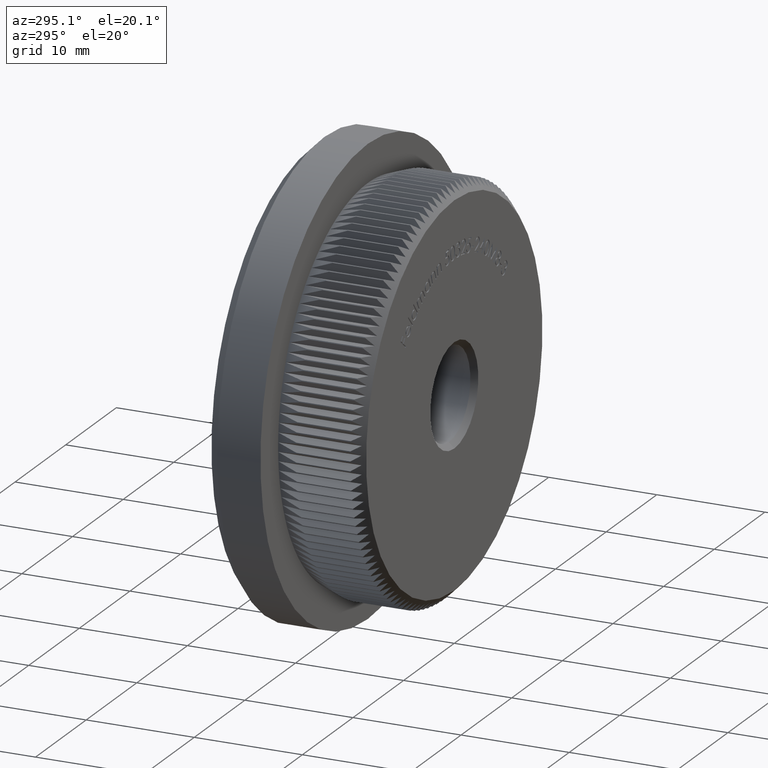
[diagram: clean part render]
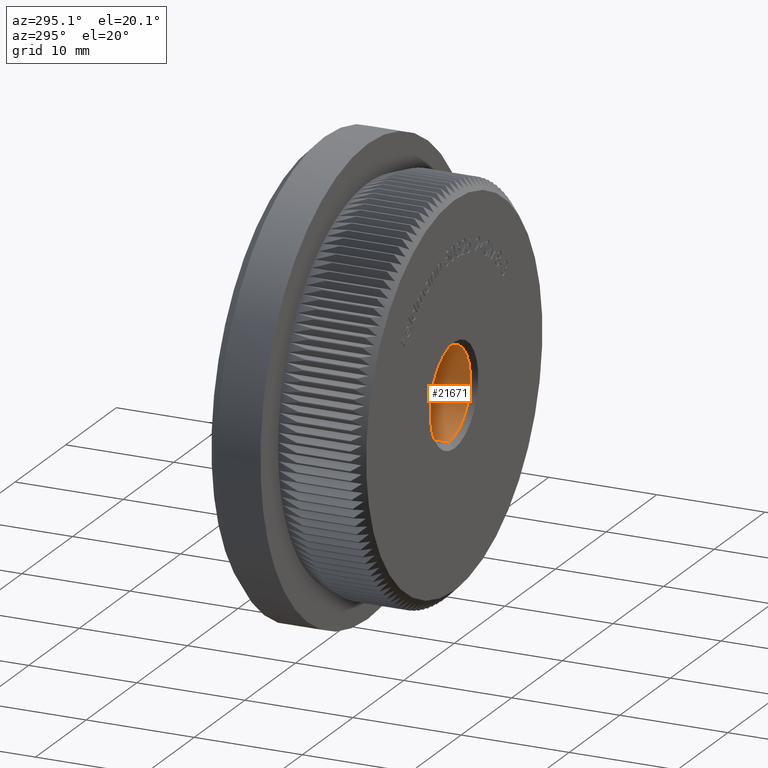
[diagram: same view with one face highlighted and labeled with its STEP entity id]
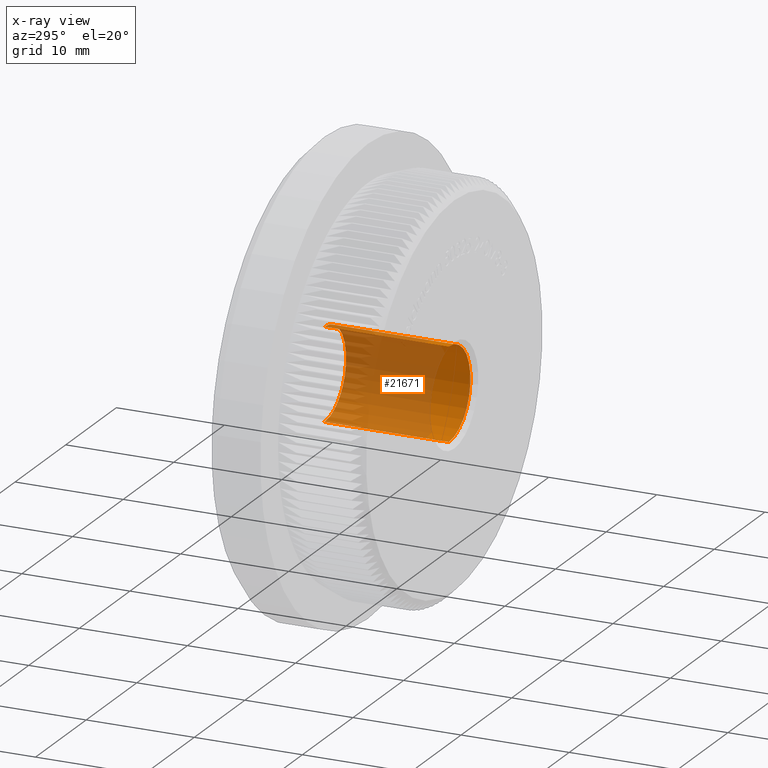
[diagram: x-ray of the same camera — body ghosted, the highlighted face saturated]
A machine part, auxiliary view. The second image highlights one B-rep face of the part: STEP entity #21671.
The next image is the same camera in x-ray: the body ghosted, the highlighted face saturated — about 75% of this face is hidden behind the body in this view.
In plain terms, the highlighted cylindrical surface (partial cylindrical patch) has radius 4.25 mm, axis along (-0, -1, -0).
Its self-contained STEP definition (entity closure, byte-faithful):
#192 = CARTESIAN_POINT ( 'NONE',  ( 0.0000000000000000000, 0.5000000000000078800, 0.0000000000000000000 ) ) ;
#1220 = EDGE_CURVE ( 'NONE', #15974, #27995, #18675, .T. ) ;
#2057 = DIRECTION ( 'NONE',  ( 0.0000000000000000000, 0.0000000000000000000, 1.000000000000000000 ) ) ;
#2417 = EDGE_LOOP ( 'NONE', ( #22675, #17330, #25316, #6185 ) ) ;
#3342 = CYLINDRICAL_SURFACE ( 'NONE', #26822, 4.249999999999997300 ) ;
#4757 = CARTESIAN_POINT ( 'NONE',  ( 0.0000000000000000000, 11.99999999999998000, -4.249999999999997300 ) ) ;
#5256 = LINE ( 'NONE', #12722, #30077 ) ;
#6037 = LINE ( 'NONE', #23704, #19038 ) ;
#6185 = ORIENTED_EDGE ( 'NONE', *, *, #17702, .T. ) ;
#8880 = FACE_OUTER_BOUND ( 'NONE', #2417, .T. ) ;
#10736 = CARTESIAN_POINT ( 'NONE',  ( 0.0000000000000000000, 0.5000000000000078800, -4.249999999999997300 ) ) ;
#12722 = CARTESIAN_POINT ( 'NONE',  ( 5.204748896376248700E-016, 0.0000000000000000000, 4.249999999999997300 ) ) ;
#14154 = DIRECTION ( 'NONE',  ( 0.0000000000000000000, 0.0000000000000000000, -1.000000000000000000 ) ) ;
#15974 = VERTEX_POINT ( 'NONE', #18412 ) ;
#17330 = ORIENTED_EDGE ( 'NONE', *, *, #1220, .T. ) ;
#17462 = AXIS2_PLACEMENT_3D ( 'NONE', #32249, #27039, #2057 ) ;
#17543 = CARTESIAN_POINT ( 'NONE',  ( 5.204748896376248700E-016, 0.5000000000000078800, 4.249999999999997300 ) ) ;
#17702 = EDGE_CURVE ( 'NONE', #21242, #23555, #27842, .T. ) ;
#18412 = CARTESIAN_POINT ( 'NONE',  ( 5.204748896376248700E-016, 11.99999999999998000, 4.249999999999997300 ) ) ;
#18675 = CIRCLE ( 'NONE', #17462, 4.249999999999997300 ) ;
#19038 = VECTOR ( 'NONE', #28649, 1000.000000000000000 ) ;
#21242 = VERTEX_POINT ( 'NONE', #10736 ) ;
#21671 = ADVANCED_FACE ( 'NONE', ( #8880 ), #3342, .F. ) ;
#22673 = DIRECTION ( 'NONE',  ( 0.0000000000000000000, -1.000000000000000000, 0.0000000000000000000 ) ) ;
#22675 = ORIENTED_EDGE ( 'NONE', *, *, #24083, .F. ) ;
#23396 = EDGE_CURVE ( 'NONE', #27995, #21242, #6037, .T. ) ;
#23555 = VERTEX_POINT ( 'NONE', #17543 ) ;
#23704 = CARTESIAN_POINT ( 'NONE',  ( 0.0000000000000000000, 0.0000000000000000000, -4.249999999999997300 ) ) ;
#24083 = EDGE_CURVE ( 'NONE', #15974, #23555, #5256, .T. ) ;
#25193 = DIRECTION ( 'NONE',  ( 0.0000000000000000000, 0.0000000000000000000, -1.000000000000000000 ) ) ;
#25316 = ORIENTED_EDGE ( 'NONE', *, *, #23396, .T. ) ;
#25365 = DIRECTION ( 'NONE',  ( -0.0000000000000000000, -1.000000000000000000, -0.0000000000000000000 ) ) ;
#26540 = AXIS2_PLACEMENT_3D ( 'NONE', #192, #22673, #25193 ) ;
#26705 = DIRECTION ( 'NONE',  ( -0.0000000000000000000, -1.000000000000000000, -0.0000000000000000000 ) ) ;
#26822 = AXIS2_PLACEMENT_3D ( 'NONE', #31908, #26705, #14154 ) ;
#27039 = DIRECTION ( 'NONE',  ( -0.0000000000000000000, 1.000000000000000000, -0.0000000000000000000 ) ) ;
#27842 = CIRCLE ( 'NONE', #26540, 4.249999999999997300 ) ;
#27995 = VERTEX_POINT ( 'NONE', #4757 ) ;
#28649 = DIRECTION ( 'NONE',  ( -0.0000000000000000000, -1.000000000000000000, -0.0000000000000000000 ) ) ;
#30077 = VECTOR ( 'NONE', #25365, 1000.000000000000000 ) ;
#31908 = CARTESIAN_POINT ( 'NONE',  ( 0.0000000000000000000, 0.0000000000000000000, 0.0000000000000000000 ) ) ;
#32249 = CARTESIAN_POINT ( 'NONE',  ( 0.0000000000000000000, 11.99999999999998000, 0.0000000000000000000 ) ) ;